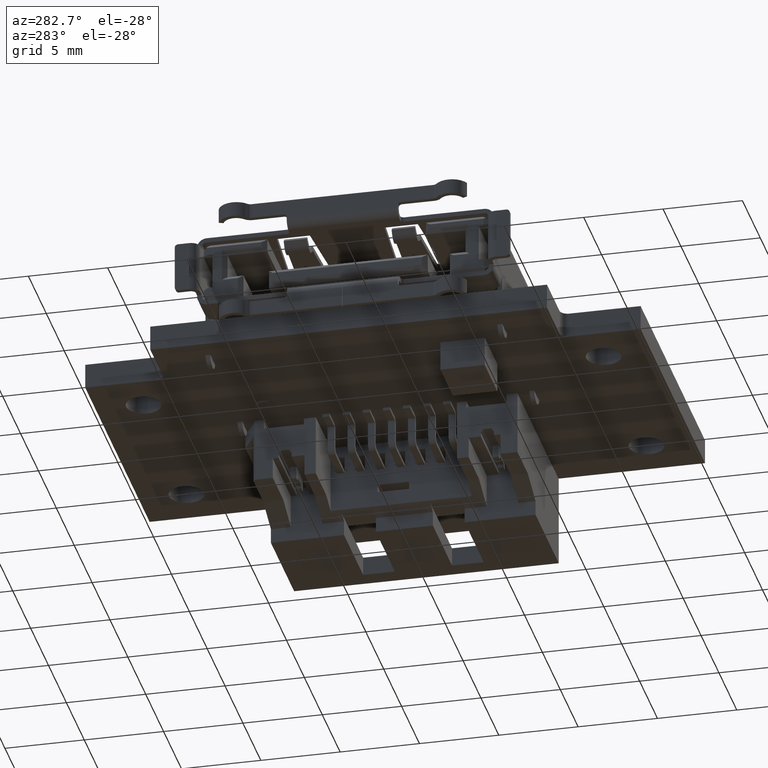
[diagram: clean part render]
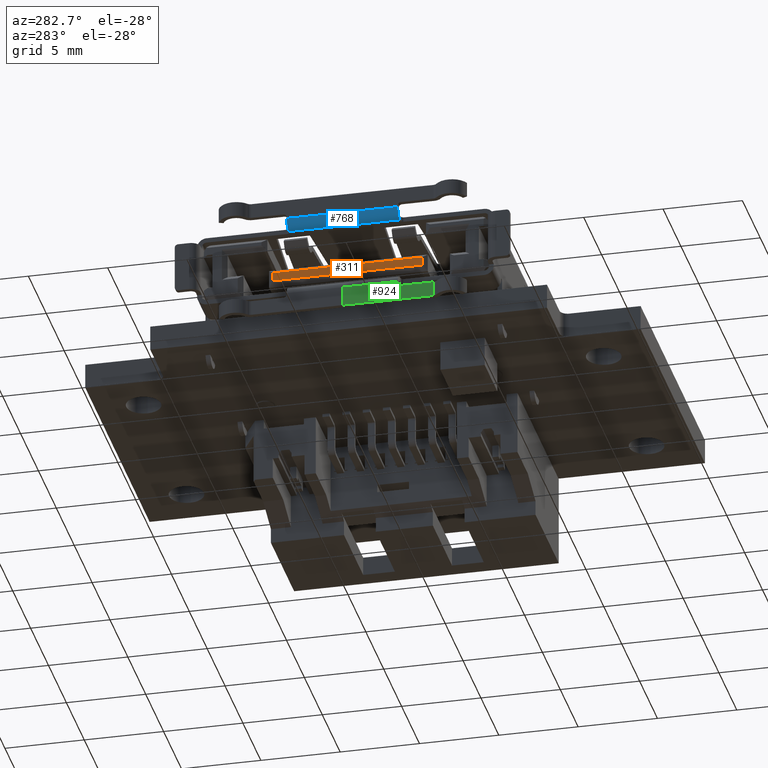
[diagram: same view with three faces highlighted in distinct colors, each labeled with its STEP entity id]
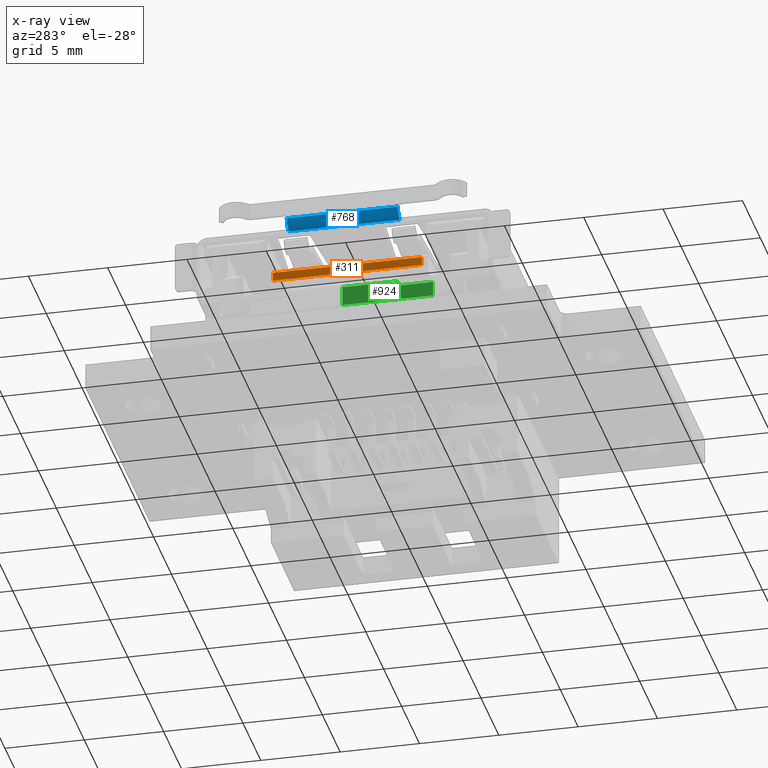
[diagram: x-ray of the same camera — body ghosted, the three highlighted faces saturated]
A machine part, auxiliary view with three faces highlighted in distinct colors.
The next image is the same camera in x-ray (body ghosted, the three faces saturated) — at least one of them is partly hidden behind the body in this view.
Their STEP definitions:

[orange] entity #311 — the highlighted planar face has unit normal (-1, 0, 0).
#311=ADVANCED_FACE('',(#1653),#12419,.T.);
#1653=FACE_OUTER_BOUND('',#3116,.F.);
#3116=EDGE_LOOP('',(#4964,#4965,#4966,#4967));
#4964=ORIENTED_EDGE('',*,*,#16450,.F.);
#4965=ORIENTED_EDGE('',*,*,#16451,.F.);
#4966=ORIENTED_EDGE('',*,*,#16447,.F.);
#4967=ORIENTED_EDGE('',*,*,#16452,.F.);
#12419=PLANE('',#27981);
#16447=EDGE_CURVE('',#25853,#25852,#20031,.T.);
#16450=EDGE_CURVE('',#25851,#25850,#20034,.T.);
#16451=EDGE_CURVE('',#25852,#25851,#20035,.T.);
#16452=EDGE_CURVE('',#25850,#25853,#20036,.T.);
#20031=LINE('',#41594,#23551);
#20034=LINE('',#41597,#23554);
#20035=LINE('',#41598,#23555);
#20036=LINE('',#41599,#23556);
#23551=VECTOR('',#32080,0.550000000000001);
#23554=VECTOR('',#32083,0.550000000000001);
#23555=VECTOR('',#32084,9.40000000000001);
#23556=VECTOR('',#32085,9.40000000000001);
#25850=VERTEX_POINT('',#37165);
#25851=VERTEX_POINT('',#37166);
#25852=VERTEX_POINT('',#37167);
#25853=VERTEX_POINT('',#37168);
#27981=AXIS2_PLACEMENT_3D('',#43099,#33698,#33699);
#32080=DIRECTION('',(0.,0.,1.));
#32083=DIRECTION('',(0.,0.,-1.));
#32084=DIRECTION('',(0.,1.,0.));
#32085=DIRECTION('',(0.,-1.,0.));
#33698=DIRECTION('',(-1.,0.,0.));
#33699=DIRECTION('',(0.,-1.,0.));
#37165=CARTESIAN_POINT('',(-82.3500000000126,4.7000000000003,9.20000023211529));
#37166=CARTESIAN_POINT('',(-82.3500000000126,4.7000000000003,9.75000023211529));
#37167=CARTESIAN_POINT('',(-82.3500000000126,-4.6999999999997,9.75000023211529));
#37168=CARTESIAN_POINT('',(-82.3500000000126,-4.6999999999997,9.20000023211529));
#41594=CARTESIAN_POINT('',(-82.3500000000126,-4.6999999999997,9.20000023211529));
#41597=CARTESIAN_POINT('',(-82.3500000000126,4.7000000000003,9.75000023211529));
#41598=CARTESIAN_POINT('',(-82.3500000000126,-4.6999999999997,9.75000023211529));
#41599=CARTESIAN_POINT('',(-82.3500000000126,4.7000000000003,9.20000023211529));
#43099=CARTESIAN_POINT('',(-82.3500000000126,5.1700000000003,8.73000023211529));

[blue] entity #768 — the highlighted cylindrical surface (edge-blend (fillet) strip) has radius 0.6 mm, axis along (0, -1, 0).
#115=CYLINDRICAL_SURFACE('',#28438,0.6);
#768=ADVANCED_FACE('',(#2110),#115,.T.);
#2110=FACE_OUTER_BOUND('',#3580,.F.);
#3580=EDGE_LOOP('',(#7592,#7593,#7594,#7595));
#7592=ORIENTED_EDGE('',*,*,#14880,.T.);
#7593=ORIENTED_EDGE('',*,*,#14868,.T.);
#7594=ORIENTED_EDGE('',*,*,#14848,.T.);
#7595=ORIENTED_EDGE('',*,*,#14745,.F.);
#13672=CIRCLE('',#27669,0.6);
#13681=CIRCLE('',#27678,0.6);
#14745=EDGE_CURVE('',#26852,#26856,#18575,.T.);
#14848=EDGE_CURVE('',#26800,#26856,#13672,.T.);
#14868=EDGE_CURVE('',#26788,#26800,#18669,.T.);
#14880=EDGE_CURVE('',#26852,#26788,#13681,.T.);
#18575=LINE('',#39620,#22095);
#18669=LINE('',#39847,#22189);
#22095=VECTOR('',#30212,7.);
#22189=VECTOR('',#30332,7.);
#26788=VERTEX_POINT('',#38103);
#26800=VERTEX_POINT('',#38115);
#26852=VERTEX_POINT('',#38167);
#26856=VERTEX_POINT('',#38171);
#27669=AXIS2_PLACEMENT_3D('',#39827,#30306,#30307);
#27678=AXIS2_PLACEMENT_3D('',#39859,#30347,#30348);
#28438=AXIS2_PLACEMENT_3D('',#43556,#34612,#34613);
#30212=DIRECTION('',(0.,-1.,0.));
#30306=DIRECTION('',(0.,-1.,0.));
#30307=DIRECTION('',(-1.,0.,0.));
#30332=DIRECTION('',(0.,-1.,0.));
#30347=DIRECTION('',(0.,1.,0.));
#30348=DIRECTION('',(0.,0.,-1.));
#34612=DIRECTION('',(0.,-1.,0.));
#34613=DIRECTION('',(-0.996194698091746,0.,0.0871557427476569));
#38103=CARTESIAN_POINT('',(-83.8000000000126,3.5000000000003,12.6500002321153));
#38115=CARTESIAN_POINT('',(-83.8000000000126,-3.4999999999997,12.6500002321153));
#38167=CARTESIAN_POINT('',(-83.2000000000126,3.5000000000003,12.0500002321153));
#38171=CARTESIAN_POINT('',(-83.2000000000126,-3.4999999999997,12.0500002321153));
#39620=CARTESIAN_POINT('',(-83.2000000000126,3.5000000000003,12.0500002321153));
#39827=CARTESIAN_POINT('',(-83.2000000000126,-3.4999999999997,12.6500002321153));
#39847=CARTESIAN_POINT('',(-83.8000000000126,3.5000000000003,12.6500002321153));
#39859=CARTESIAN_POINT('',(-83.2000000000126,3.5000000000003,12.6500002321153));
#43556=CARTESIAN_POINT('',(-83.2000000000126,-3.8499999999997,12.6500002321153));

[green] entity #924 — the highlighted planar face has unit normal (-1, 0, 0).
#924=ADVANCED_FACE('',(#2266),#12893,.T.);
#2266=FACE_OUTER_BOUND('',#3742,.F.);
#3742=EDGE_LOOP('',(#8410,#8411,#8412,#8413,#8414,#8415,#8416));
#8410=ORIENTED_EDGE('',*,*,#14889,.F.);
#8411=ORIENTED_EDGE('',*,*,#14890,.T.);
#8412=ORIENTED_EDGE('',*,*,#14851,.T.);
#8413=ORIENTED_EDGE('',*,*,#14891,.T.);
#8414=ORIENTED_EDGE('',*,*,#14892,.F.);
#8415=ORIENTED_EDGE('',*,*,#14893,.F.);
#8416=ORIENTED_EDGE('',*,*,#14894,.T.);
#12893=PLANE('',#28586);
#13684=CIRCLE('',#27681,0.2);
#14851=EDGE_CURVE('',#26797,#26798,#18657,.T.);
#14889=EDGE_CURVE('',#26766,#26765,#18684,.T.);
#14890=EDGE_CURVE('',#26766,#26797,#18685,.T.);
#14891=EDGE_CURVE('',#26798,#26764,#13684,.T.);
#14892=EDGE_CURVE('',#26763,#26764,#18686,.T.);
#14893=EDGE_CURVE('',#26762,#26763,#18687,.T.);
#14894=EDGE_CURVE('',#26762,#26765,#18688,.T.);
#18657=LINE('',#39830,#22177);
#18684=LINE('',#39868,#22204);
#18685=LINE('',#39869,#22205);
#18686=LINE('',#39871,#22206);
#18687=LINE('',#39872,#22207);
#18688=LINE('',#39873,#22208);
#22177=VECTOR('',#30310,0.0999999999999996);
#22204=VECTOR('',#30359,1.25);
#22205=VECTOR('',#30360,3.49);
#22206=VECTOR('',#30363,2.02761947052399);
#22207=VECTOR('',#30364,0.950000000000001);
#22208=VECTOR('',#30365,5.717619470524);
#26762=VERTEX_POINT('',#38077);
#26763=VERTEX_POINT('',#38078);
#26764=VERTEX_POINT('',#38079);
#26765=VERTEX_POINT('',#38080);
#26766=VERTEX_POINT('',#38081);
#26797=VERTEX_POINT('',#38112);
#26798=VERTEX_POINT('',#38113);
#27681=AXIS2_PLACEMENT_3D('',#39870,#30361,#30362);
#28586=AXIS2_PLACEMENT_3D('',#43848,#34908,#34909);
#30310=DIRECTION('',(0.,0.,-1.));
#30359=DIRECTION('',(0.,0.,-1.));
#30360=DIRECTION('',(0.,-1.,0.));
#30361=DIRECTION('',(-1.,0.,0.));
#30362=DIRECTION('',(0.,1.,0.));
#30363=DIRECTION('',(0.,1.,0.));
#30364=DIRECTION('',(0.,0.,1.));
#30365=DIRECTION('',(0.,1.,0.));
#34908=DIRECTION('',(-1.,0.,0.));
#34909=DIRECTION('',(0.,0.,-1.));
#38077=CARTESIAN_POINT('',(-83.8000000000126,-5.7276194705237,6.20000023211529));
#38078=CARTESIAN_POINT('',(-83.8000000000126,-5.7276194705237,7.15000023211529));
#38079=CARTESIAN_POINT('',(-83.8000000000126,-3.6999999999997,7.15000023211529));
#38080=CARTESIAN_POINT('',(-83.8000000000126,-0.00999999999969932,6.20000023211529));
#38081=CARTESIAN_POINT('',(-83.8000000000126,-0.00999999999969932,7.45000023211529));
#38112=CARTESIAN_POINT('',(-83.8000000000126,-3.4999999999997,7.45000023211529));
#38113=CARTESIAN_POINT('',(-83.8000000000126,-3.4999999999997,7.35000023211529));
#39830=CARTESIAN_POINT('',(-83.8000000000126,-3.4999999999997,7.45000023211529));
#39868=CARTESIAN_POINT('',(-83.8000000000126,-0.00999999999969932,7.45000023211529));
#39869=CARTESIAN_POINT('',(-83.8000000000126,-0.00999999999969932,7.45000023211529));
#39870=CARTESIAN_POINT('',(-83.8000000000126,-3.6999999999997,7.35000023211529));
#39871=CARTESIAN_POINT('',(-83.8000000000126,-5.7276194705237,7.15000023211529));
#39872=CARTESIAN_POINT('',(-83.8000000000126,-5.7276194705237,6.20000023211529));
#39873=CARTESIAN_POINT('',(-83.8000000000126,-5.7276194705237,6.20000023211529));
#43848=CARTESIAN_POINT('',(-83.8000000000126,0.275880973526498,7.73588120564149));